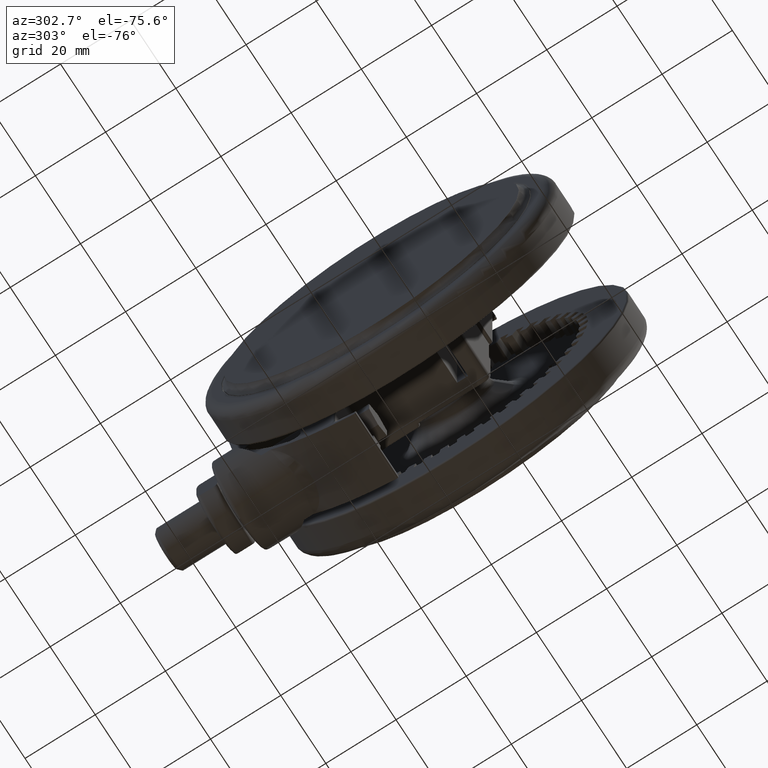
[diagram: clean part render]
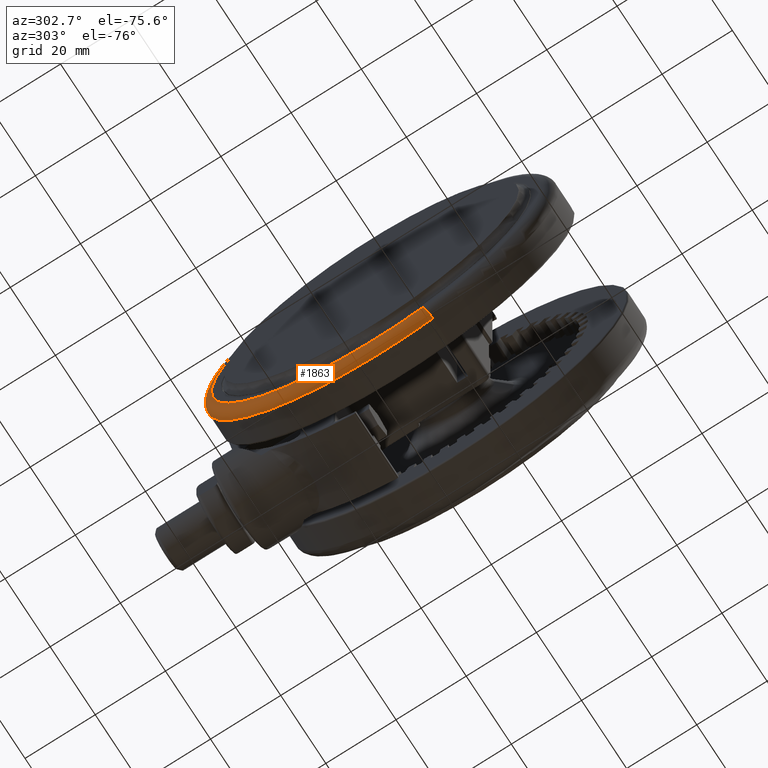
[diagram: same view with one face highlighted and labeled with its STEP entity id]
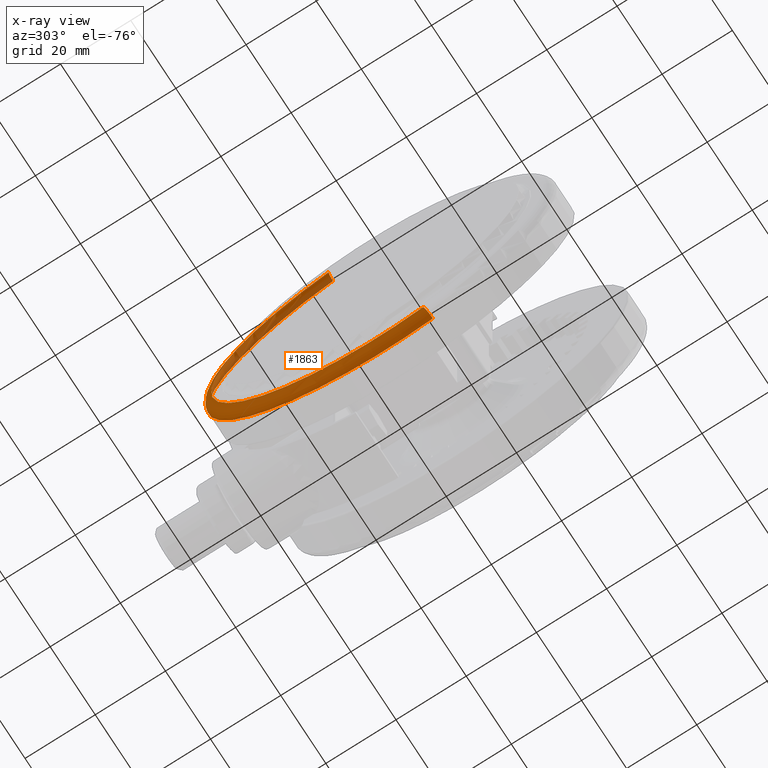
[diagram: x-ray of the same camera — body ghosted, the highlighted face saturated]
A machine part, auxiliary view. The second image highlights one B-rep face of the part: STEP entity #1863.
The next image is the same camera in x-ray: the body ghosted, the highlighted face saturated — about 13% of this face is hidden behind the body in this view.
In plain terms, the highlighted toroidal blend (fillet) surface has major radius 47 mm and minor (blend) radius 3 mm.
Its self-contained STEP definition (entity closure, byte-faithful):
#845 = DIRECTION ( 'NONE',  ( -0.9587657712597809100, 0.2841974592789973700, 0.0000000000000000000 ) ) ;
#1856 = DIRECTION ( 'NONE',  ( 3.380642383533773200E-017, 2.202247500052102700E-016, 1.000000000000000000 ) ) ;
#1863 = ADVANCED_FACE ( 'NONE', ( #8211 ), #37105, .T. ) ;
#2277 = CIRCLE ( 'NONE', #36432, 2.999999999999999600 ) ;
#6465 = VERTEX_POINT ( 'NONE', #23974 ) ;
#6622 = CARTESIAN_POINT ( 'NONE',  ( -45.06199124920969700, 13.35728058611286800, -43.50000000000005000 ) ) ;
#8211 = FACE_OUTER_BOUND ( 'NONE', #35656, .T. ) ;
#9156 = DIRECTION ( 'NONE',  ( -0.9587657712597810200, 0.2841974592789973700, -3.017487239981049600E-017 ) ) ;
#10428 = DIRECTION ( 'NONE',  ( -0.9587657712597810200, 0.2841974592789973100, 0.0000000000000000000 ) ) ;
#10803 = CARTESIAN_POINT ( 'NONE',  ( 1.387778780781445700E-014, -8.673617379884035500E-015, -46.49999999999994300 ) ) ;
#12510 = ORIENTED_EDGE ( 'NONE', *, *, #38972, .F. ) ;
#12594 = ORIENTED_EDGE ( 'NONE', *, *, #42579, .F. ) ;
#14583 = DIRECTION ( 'NONE',  ( -0.9587657712597809100, 0.2841974592789973100, 0.0000000000000000000 ) ) ;
#15611 = ORIENTED_EDGE ( 'NONE', *, *, #19620, .T. ) ;
#18766 = ORIENTED_EDGE ( 'NONE', *, *, #43083, .F. ) ;
#19571 = CARTESIAN_POINT ( 'NONE',  ( 45.06199124920972600, -13.35728058611288900, -43.50000000000005000 ) ) ;
#19620 = EDGE_CURVE ( 'NONE', #41945, #20156, #2277, .T. ) ;
#20156 = VERTEX_POINT ( 'NONE', #42599 ) ;
#21764 = CARTESIAN_POINT ( 'NONE',  ( 45.06199124920972600, -13.35728058611288900, -46.50000000000000000 ) ) ;
#23393 = DIRECTION ( 'NONE',  ( 0.9587657712597810200, -0.2841974592789973100, 0.0000000000000000000 ) ) ;
#23413 = CIRCLE ( 'NONE', #24730, 47.00000000000000700 ) ;
#23480 = DIRECTION ( 'NONE',  ( 3.380642383533773200E-017, 2.202247500052102700E-016, 1.000000000000000000 ) ) ;
#23662 = CIRCLE ( 'NONE', #28703, 50.00000000000000700 ) ;
#23974 = CARTESIAN_POINT ( 'NONE',  ( -47.93828856298903700, 14.20987296394985900, -43.50000000000005000 ) ) ;
#24730 = AXIS2_PLACEMENT_3D ( 'NONE', #10803, #37166, #14583 ) ;
#28703 = AXIS2_PLACEMENT_3D ( 'NONE', #46040, #23480, #845 ) ;
#33025 = DIRECTION ( 'NONE',  ( 0.2841974592789973700, 0.9587657712597810200, -2.207516520505498100E-016 ) ) ;
#35656 = EDGE_LOOP ( 'NONE', ( #12594, #15611, #12510, #18766 ) ) ;
#36432 = AXIS2_PLACEMENT_3D ( 'NONE', #19571, #45955, #23393 ) ;
#37105 = TOROIDAL_SURFACE ( 'NONE', #48312, 47.00000000000000000, 3.000000000000000000 ) ;
#37166 = DIRECTION ( 'NONE',  ( -3.380642383533773200E-017, -2.202247500052102700E-016, -1.000000000000000000 ) ) ;
#38960 = CARTESIAN_POINT ( 'NONE',  ( -45.06199124920969700, 13.35728058611286800, -46.50000000000000000 ) ) ;
#38972 = EDGE_CURVE ( 'NONE', #6465, #20156, #23662, .T. ) ;
#41945 = VERTEX_POINT ( 'NONE', #21764 ) ;
#42205 = CIRCLE ( 'NONE', #45579, 2.999999999999999600 ) ;
#42579 = EDGE_CURVE ( 'NONE', #41945, #42838, #23413, .T. ) ;
#42599 = CARTESIAN_POINT ( 'NONE',  ( 47.93828856298906500, -14.20987296394988400, -43.50000000000005000 ) ) ;
#42838 = VERTEX_POINT ( 'NONE', #38960 ) ;
#43083 = EDGE_CURVE ( 'NONE', #42838, #6465, #42205, .T. ) ;
#44091 = CARTESIAN_POINT ( 'NONE',  ( 1.397920707932046400E-014, -8.012943129868428100E-015, -43.50000000000005000 ) ) ;
#45579 = AXIS2_PLACEMENT_3D ( 'NONE', #6622, #33025, #10428 ) ;
#45955 = DIRECTION ( 'NONE',  ( -0.2841974592789974800, -0.9587657712597810200, 2.207516520505498100E-016 ) ) ;
#46040 = CARTESIAN_POINT ( 'NONE',  ( 1.397920707932046400E-014, -8.012943129868428100E-015, -43.50000000000005000 ) ) ;
#48312 = AXIS2_PLACEMENT_3D ( 'NONE', #44091, #1856, #9156 ) ;